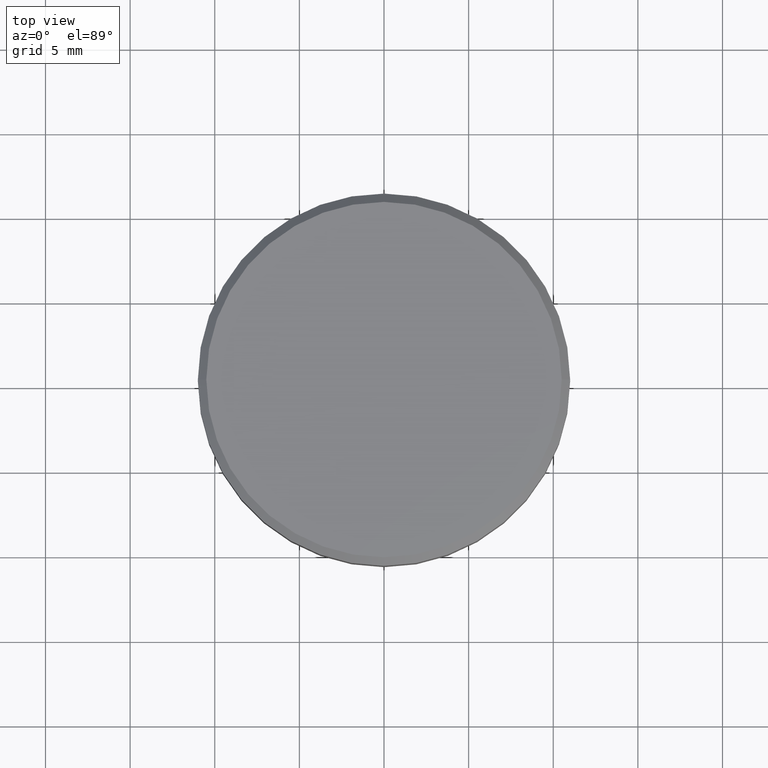
[diagram: clean part render]
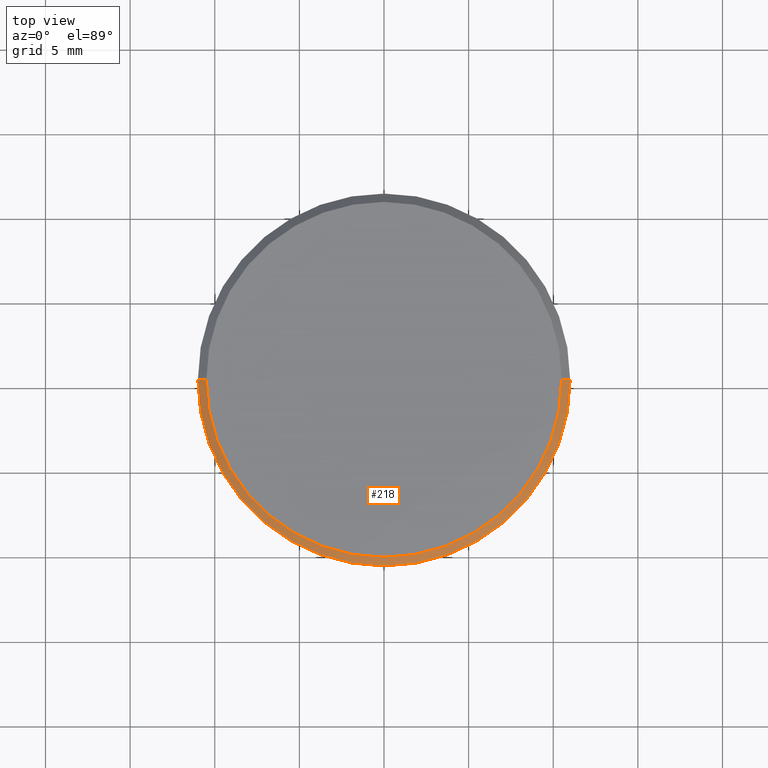
[diagram: same view with one face highlighted and labeled with its STEP entity id]
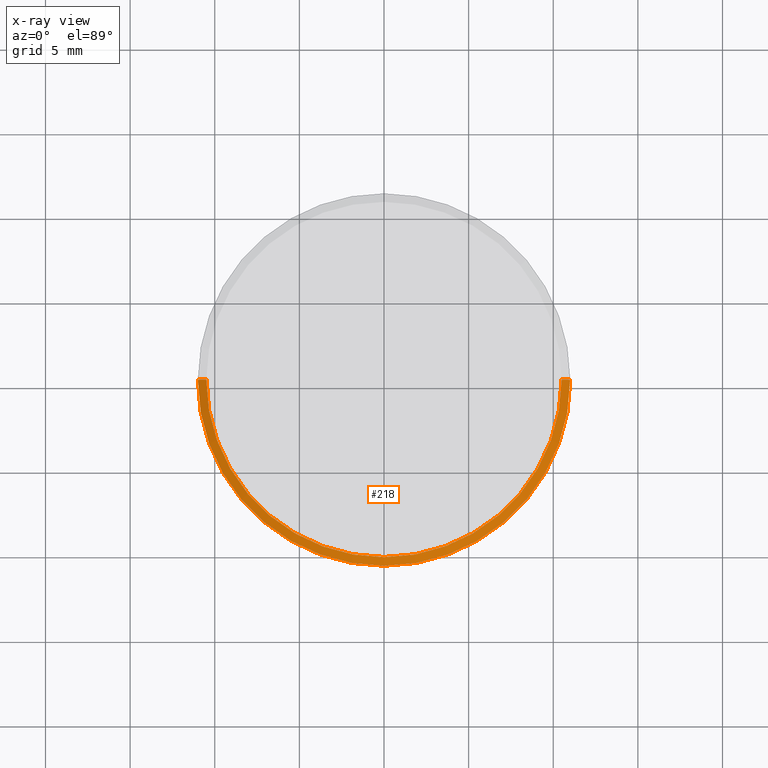
[diagram: x-ray of the same camera — body ghosted, the highlighted face saturated]
A machine part, top view. The second image highlights one B-rep face of the part: STEP entity #218.
The next image is the same camera in x-ray: the body ghosted, the highlighted face saturated — about 0% of this face is hidden behind the body in this view.
In plain terms, the highlighted conical surface has half-angle 45 deg.
Its self-contained STEP definition (entity closure, byte-faithful):
#18 = DIRECTION ( 'NONE',  ( -1.000000000000000000, 0.000000000000000000, 0.000000000000000000 ) ) ;
#20 = DIRECTION ( 'NONE',  ( 0.000000000000000000, 0.000000000000000000, -1.000000000000000000 ) ) ;
#35 = VERTEX_POINT ( 'NONE', #335 ) ;
#39 = DIRECTION ( 'NONE',  ( -0.7071067811865474617, 0.000000000000000000, -0.7071067811865474617 ) ) ;
#44 = DIRECTION ( 'NONE',  ( 0.000000000000000000, 0.000000000000000000, -1.000000000000000000 ) ) ;
#49 = CONICAL_SURFACE ( 'NONE', #72, 10.49999999999999822, 0.7853981633974482790 ) ;
#70 = CARTESIAN_POINT ( 'NONE',  ( -11.00000000000000000, 1.347111479062088405E-15, -0.5000000000000004441 ) ) ;
#72 = AXIS2_PLACEMENT_3D ( 'NONE', #390, #20, #18 ) ;
#74 = CARTESIAN_POINT ( 'NONE',  ( 11.00000000000000000, 0.000000000000000000, -0.5000000000000004441 ) ) ;
#75 = EDGE_CURVE ( 'NONE', #35, #108, #271, .T. ) ;
#87 = ORIENTED_EDGE ( 'NONE', *, *, #119, .F. ) ;
#103 = DIRECTION ( 'NONE',  ( 0.7071067811865474617, 8.659560562354932858E-17, -0.7071067811865474617 ) ) ;
#108 = VERTEX_POINT ( 'NONE', #74 ) ;
#114 = EDGE_CURVE ( 'NONE', #219, #35, #221, .T. ) ;
#116 = AXIS2_PLACEMENT_3D ( 'NONE', #376, #342, #383 ) ;
#119 = EDGE_CURVE ( 'NONE', #108, #158, #170, .T. ) ;
#130 = ORIENTED_EDGE ( 'NONE', *, *, #75, .F. ) ;
#140 = CARTESIAN_POINT ( 'NONE',  ( -10.49999999999999822, 0.000000000000000000, 0.000000000000000000 ) ) ;
#146 = ORIENTED_EDGE ( 'NONE', *, *, #171, .T. ) ;
#158 = VERTEX_POINT ( 'NONE', #70 ) ;
#167 = CARTESIAN_POINT ( 'NONE',  ( 0.000000000000000000, 0.000000000000000000, -0.5000000000000004441 ) ) ;
#169 = FACE_OUTER_BOUND ( 'NONE', #181, .T. ) ;
#170 = CIRCLE ( 'NONE', #388, 11.00000000000000000 ) ;
#171 = EDGE_CURVE ( 'NONE', #219, #158, #216, .T. ) ;
#181 = EDGE_LOOP ( 'NONE', ( #130, #193, #146, #87 ) ) ;
#193 = ORIENTED_EDGE ( 'NONE', *, *, #114, .F. ) ;
#216 = LINE ( 'NONE', #345, #272 ) ;
#218 = ADVANCED_FACE ( 'NONE', ( #169 ), #49, .T. ) ;
#219 = VERTEX_POINT ( 'NONE', #140 ) ;
#221 = CIRCLE ( 'NONE', #116, 10.49999999999999822 ) ;
#233 = VECTOR ( 'NONE', #103, 1000.000000000000114 ) ;
#254 = DIRECTION ( 'NONE',  ( 1.000000000000000000, 0.000000000000000000, 0.000000000000000000 ) ) ;
#271 = LINE ( 'NONE', #402, #233 ) ;
#272 = VECTOR ( 'NONE', #39, 1000.000000000000114 ) ;
#335 = CARTESIAN_POINT ( 'NONE',  ( 10.49999999999999822, 1.316495309083404420E-15, 0.000000000000000000 ) ) ;
#342 = DIRECTION ( 'NONE',  ( -0.000000000000000000, -0.000000000000000000, 1.000000000000000000 ) ) ;
#345 = CARTESIAN_POINT ( 'NONE',  ( -10.49999999999999822, 0.000000000000000000, 0.000000000000000000 ) ) ;
#376 = CARTESIAN_POINT ( 'NONE',  ( 0.000000000000000000, 0.000000000000000000, 0.000000000000000000 ) ) ;
#383 = DIRECTION ( 'NONE',  ( 1.000000000000000000, 0.000000000000000000, 0.000000000000000000 ) ) ;
#388 = AXIS2_PLACEMENT_3D ( 'NONE', #167, #44, #254 ) ;
#390 = CARTESIAN_POINT ( 'NONE',  ( 0.000000000000000000, 0.000000000000000000, 0.000000000000000000 ) ) ;
#402 = CARTESIAN_POINT ( 'NONE',  ( 10.49999999999999822, 1.285879139104720633E-15, 0.000000000000000000 ) ) ;